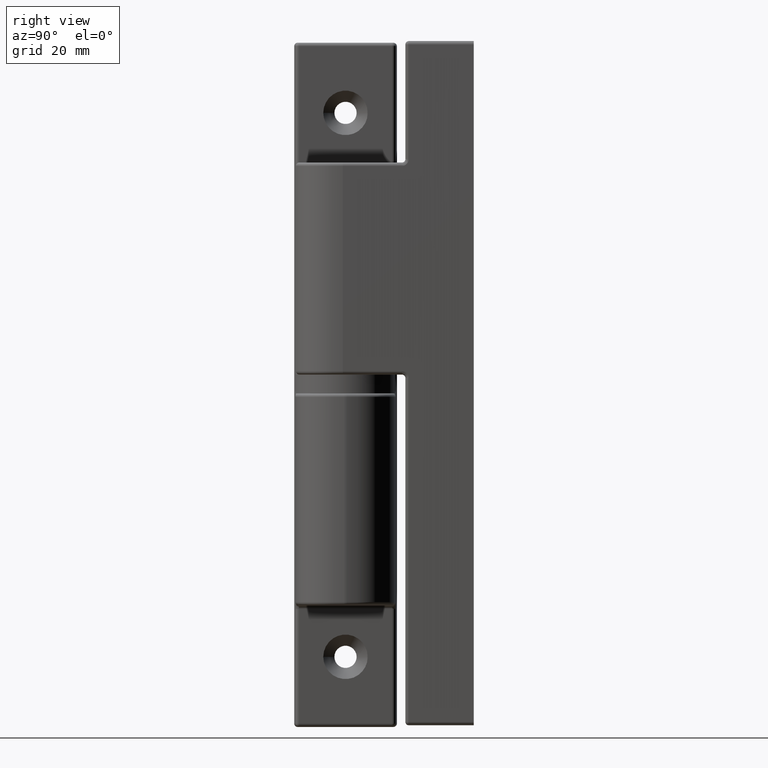
[diagram: clean part render]
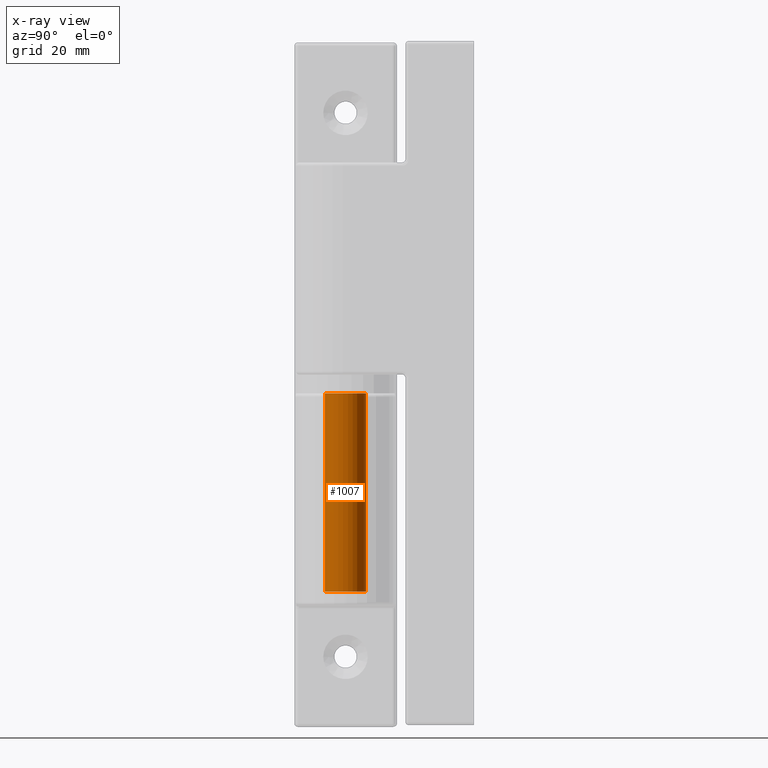
[diagram: x-ray — body ghosted, one internal face saturated and labeled with its STEP entity id]
A machine part, right view, then the same camera in x-ray: the body is ghosted and one INTERNAL B-rep face — a face not visible from any outside direction — is saturated and labeled: STEP entity #1007.
In plain terms, the highlighted cylindrical surface (bore or boss wall) has radius 6 mm, axis along (-0, 0, -1).
Its self-contained STEP definition (entity closure, byte-faithful):
#54=FACE_BOUND('',#357,.T.);
#217=CYLINDRICAL_SURFACE('',#1137,6.);
#274=FACE_OUTER_BOUND('',#356,.T.);
#356=EDGE_LOOP('',(#899));
#357=EDGE_LOOP('',(#900));
#457=CIRCLE('',#1132,6.);
#461=CIRCLE('',#1138,6.);
#555=VERTEX_POINT('',#1864);
#559=VERTEX_POINT('',#1874);
#681=EDGE_CURVE('',#555,#555,#457,.T.);
#685=EDGE_CURVE('',#559,#559,#461,.T.);
#899=ORIENTED_EDGE('',*,*,#685,.T.);
#900=ORIENTED_EDGE('',*,*,#681,.F.);
#1007=ADVANCED_FACE('',(#274,#54),#217,.F.);
#1132=AXIS2_PLACEMENT_3D('',#1865,#1425,#1426);
#1137=AXIS2_PLACEMENT_3D('',#1873,#1435,#1436);
#1138=AXIS2_PLACEMENT_3D('',#1875,#1437,#1438);
#1425=DIRECTION('center_axis',(0.,0.,-1.));
#1426=DIRECTION('ref_axis',(-1.,-1.51925256001337E-16,0.));
#1435=DIRECTION('center_axis',(0.,0.,-1.));
#1436=DIRECTION('ref_axis',(-1.,-1.51925256001337E-16,0.));
#1437=DIRECTION('center_axis',(0.,0.,-1.));
#1438=DIRECTION('ref_axis',(-1.,-1.51925256001337E-16,0.));
#1864=CARTESIAN_POINT('',(6.,37.5,-2.5));
#1865=CARTESIAN_POINT('Origin',(-4.44089209850063E-15,37.5,-2.5));
#1873=CARTESIAN_POINT('Origin',(-4.44089209850063E-15,37.5,-2.5));
#1874=CARTESIAN_POINT('',(6.,37.5,-60.5));
#1875=CARTESIAN_POINT('Origin',(-4.44089209850063E-15,37.5,-60.5));